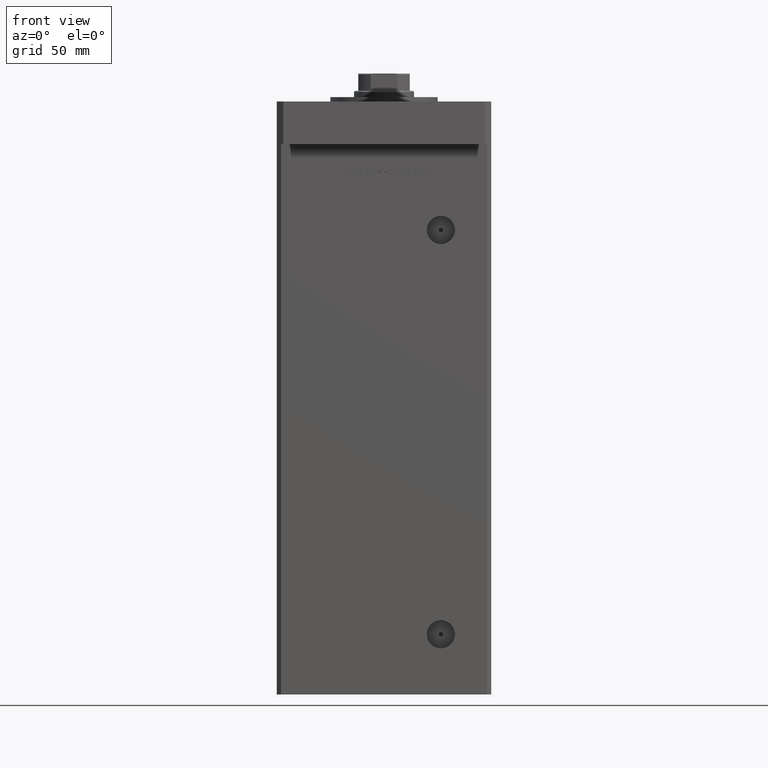
[diagram: clean part render]
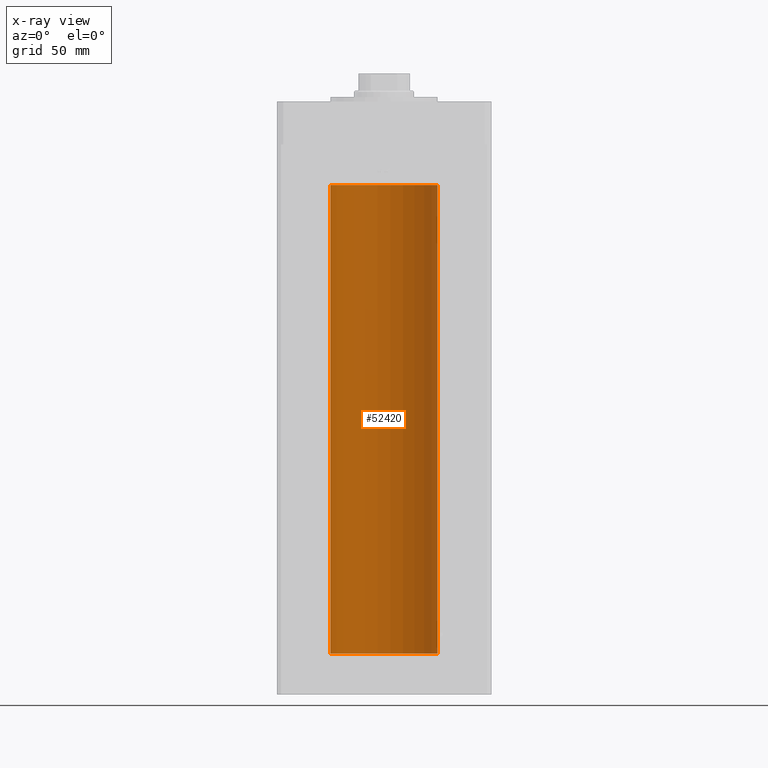
[diagram: x-ray — body ghosted, one internal face saturated and labeled with its STEP entity id]
A machine part, front view, then the same camera in x-ray: the body is ghosted and one INTERNAL B-rep face — a face not visible from any outside direction — is saturated and labeled: STEP entity #52420.
In plain terms, the highlighted cylindrical surface (partial cylindrical patch) has radius 25 mm, axis along (-0, -0, -1).
Its self-contained STEP definition (entity closure, byte-faithful):
#741 = VERTEX_POINT ( 'NONE', #48246 ) ;
#1160 = FACE_OUTER_BOUND ( 'NONE', #2667, .T. ) ;
#1563 = ORIENTED_EDGE ( 'NONE', *, *, #34026, .T. ) ;
#2171 = VERTEX_POINT ( 'NONE', #48983 ) ;
#2667 = EDGE_LOOP ( 'NONE', ( #10354, #1563, #50904, #12974 ) ) ;
#4425 = CARTESIAN_POINT ( 'NONE',  ( 0.000000000000000000, 0.000000000000000000, 218.5000000000000000 ) ) ;
#4695 = DIRECTION ( 'NONE',  ( -0.000000000000000000, 0.000000000000000000, 1.000000000000000000 ) ) ;
#5515 = DIRECTION ( 'NONE',  ( 1.000000000000000000, 0.000000000000000000, 0.000000000000000000 ) ) ;
#5517 = CARTESIAN_POINT ( 'NONE',  ( 0.000000000000000000, 0.000000000000000000, 218.5000000000000000 ) ) ;
#5779 = DIRECTION ( 'NONE',  ( -0.000000000000000000, -0.000000000000000000, -1.000000000000000000 ) ) ;
#7501 = AXIS2_PLACEMENT_3D ( 'NONE', #4425, #4695, #5515 ) ;
#8797 = CARTESIAN_POINT ( 'NONE',  ( 25.00000000000000000, 3.061616997868383043E-15, 218.5000000000000000 ) ) ;
#10354 = ORIENTED_EDGE ( 'NONE', *, *, #35748, .F. ) ;
#11484 = CIRCLE ( 'NONE', #35873, 25.00000000000000000 ) ;
#12044 = CARTESIAN_POINT ( 'NONE',  ( 25.00000000000000000, 3.061616997868383043E-15, 218.5000000000000000 ) ) ;
#12974 = ORIENTED_EDGE ( 'NONE', *, *, #27602, .F. ) ;
#14647 = VECTOR ( 'NONE', #14763, 1000.000000000000000 ) ;
#14763 = DIRECTION ( 'NONE',  ( -0.000000000000000000, -0.000000000000000000, -1.000000000000000000 ) ) ;
#20435 = CARTESIAN_POINT ( 'NONE',  ( -25.00000000000000000, 0.000000000000000000, 0.000000000000000000 ) ) ;
#25045 = DIRECTION ( 'NONE',  ( 1.000000000000000000, 0.000000000000000000, 0.000000000000000000 ) ) ;
#27290 = CARTESIAN_POINT ( 'NONE',  ( -25.00000000000000000, 0.000000000000000000, 218.5000000000000000 ) ) ;
#27602 = EDGE_CURVE ( 'NONE', #741, #40628, #11484, .T. ) ;
#29527 = LINE ( 'NONE', #8797, #38046 ) ;
#31440 = AXIS2_PLACEMENT_3D ( 'NONE', #5517, #5779, #51317 ) ;
#34026 = EDGE_CURVE ( 'NONE', #43606, #2171, #46714, .T. ) ;
#34427 = CYLINDRICAL_SURFACE ( 'NONE', #31440, 25.00000000000000000 ) ;
#35748 = EDGE_CURVE ( 'NONE', #43606, #741, #29527, .T. ) ;
#35873 = AXIS2_PLACEMENT_3D ( 'NONE', #50122, #45769, #25045 ) ;
#38046 = VECTOR ( 'NONE', #46981, 1000.000000000000000 ) ;
#39751 = EDGE_CURVE ( 'NONE', #2171, #40628, #52112, .T. ) ;
#40628 = VERTEX_POINT ( 'NONE', #20435 ) ;
#43606 = VERTEX_POINT ( 'NONE', #12044 ) ;
#45769 = DIRECTION ( 'NONE',  ( -0.000000000000000000, 0.000000000000000000, 1.000000000000000000 ) ) ;
#46714 = CIRCLE ( 'NONE', #7501, 25.00000000000000000 ) ;
#46981 = DIRECTION ( 'NONE',  ( -0.000000000000000000, -0.000000000000000000, -1.000000000000000000 ) ) ;
#48246 = CARTESIAN_POINT ( 'NONE',  ( 25.00000000000000000, 3.061616997868383043E-15, 0.000000000000000000 ) ) ;
#48983 = CARTESIAN_POINT ( 'NONE',  ( -25.00000000000000000, 0.000000000000000000, 218.5000000000000000 ) ) ;
#50122 = CARTESIAN_POINT ( 'NONE',  ( 0.000000000000000000, 0.000000000000000000, 0.000000000000000000 ) ) ;
#50904 = ORIENTED_EDGE ( 'NONE', *, *, #39751, .T. ) ;
#51317 = DIRECTION ( 'NONE',  ( -1.000000000000000000, 0.000000000000000000, 0.000000000000000000 ) ) ;
#52112 = LINE ( 'NONE', #27290, #14647 ) ;
#52420 = ADVANCED_FACE ( 'NONE', ( #1160 ), #34427, .F. ) ;